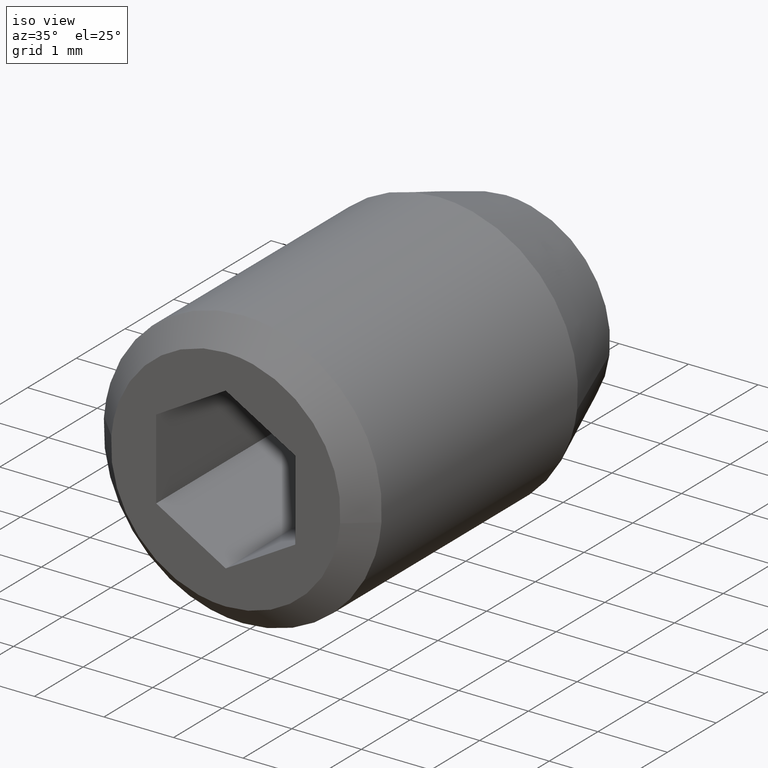
[diagram: clean part render]
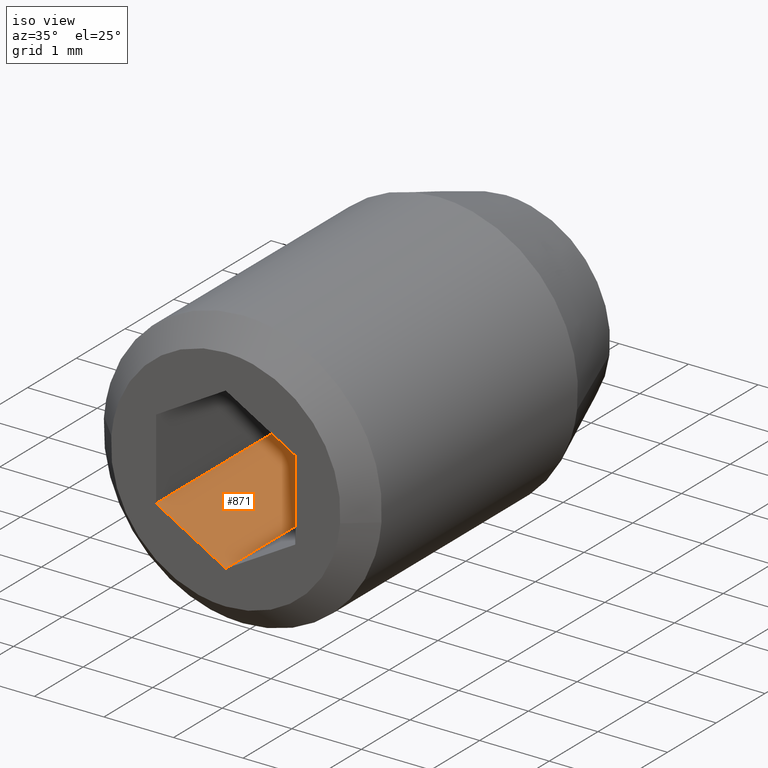
[diagram: same view with one face highlighted and labeled with its STEP entity id]
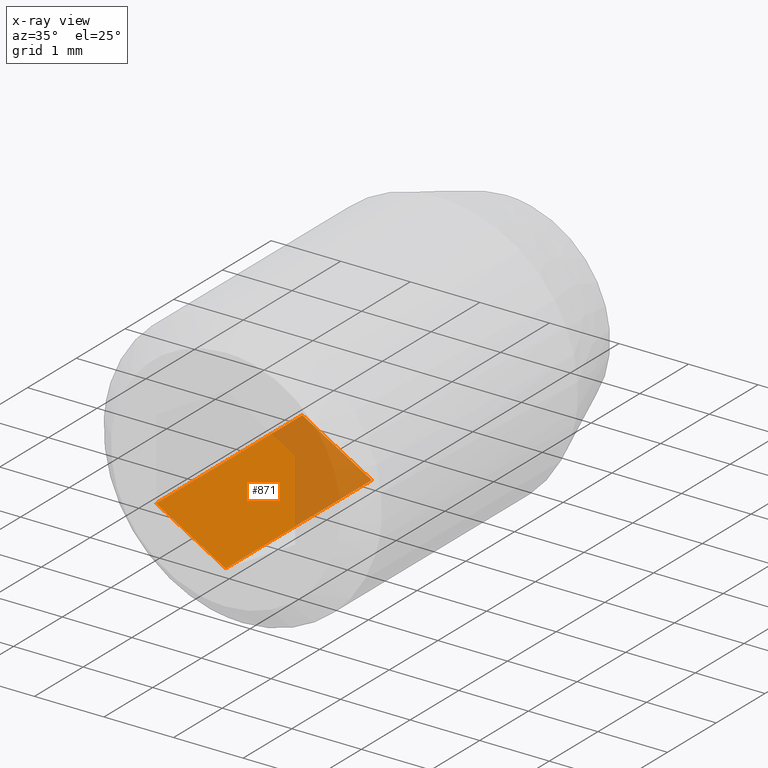
[diagram: x-ray of the same camera — body ghosted, the highlighted face saturated]
A machine part, iso view. The second image highlights one B-rep face of the part: STEP entity #871.
The next image is the same camera in x-ray: the body ghosted, the highlighted face saturated — about 31% of this face is hidden behind the body in this view.
In plain terms, the highlighted face is a freeform B-spline surface patch.
Its self-contained STEP definition (entity closure, byte-faithful):
#742=CARTESIAN_POINT('',(-1.0,-3.499999999999950,-0.577350000000017));
#743=VERTEX_POINT('',#742);
#749=CARTESIAN_POINT('',(0.0,-3.499999999999950,-1.154701000000000));
#750=VERTEX_POINT('',#749);
#751=CARTESIAN_POINT('',(-1.0,-3.499999999999950,-0.577350000000017));
#752=CARTESIAN_POINT('',(0.0,-3.499999999999950,-1.154701000000000));
#753=QUASI_UNIFORM_CURVE('',1,(#751,#752),.UNSPECIFIED.,.F.,.U.);
#754=EDGE_CURVE('',#743,#750,#753,.T.);
#833=CARTESIAN_POINT('',(0.0,-6.500000000000000,-1.154701000000000));
#834=VERTEX_POINT('',#833);
#842=CARTESIAN_POINT('',(0.0,-3.499999999999950,-1.154701000000000));
#843=CARTESIAN_POINT('',(0.0,-6.500000000000000,-1.154701000000000));
#844=QUASI_UNIFORM_CURVE('',1,(#842,#843),.UNSPECIFIED.,.F.,.U.);
#845=EDGE_CURVE('',#750,#834,#844,.T.);
#850=CARTESIAN_POINT('',(0.049949998061804,-6.649849994185422,-1.183539681330984));
#851=CARTESIAN_POINT('',(-1.049950024883896,-6.649849994185422,-0.548511303183275));
#852=CARTESIAN_POINT('',(0.049949998061804,-3.350149925348259,-1.183539681330984));
#853=CARTESIAN_POINT('',(-1.049950024883896,-3.350149925348259,-0.548511303183275));
#854=B_SPLINE_SURFACE_WITH_KNOTS('',1,1,((#850,#852),(#851,#853)),.UNSPECIFIED.,.F.,.F.,.U.,(2,2),(2,2),(0.041708334948495,0.958291687403247),(0.0,3.299700068837163),.UNSPECIFIED.);
#855=CARTESIAN_POINT('',(-1.0,-6.500000000000000,-0.577350000000017));
#856=VERTEX_POINT('',#855);
#857=CARTESIAN_POINT('',(-1.0,-6.500000000000000,-0.577350000000017));
#858=CARTESIAN_POINT('',(0.0,-6.500000000000000,-1.154701000000000));
#859=QUASI_UNIFORM_CURVE('',1,(#857,#858),.UNSPECIFIED.,.F.,.U.);
#860=EDGE_CURVE('',#856,#834,#859,.T.);
#861=ORIENTED_EDGE('',*,*,#860,.T.);
#862=ORIENTED_EDGE('',*,*,#845,.F.);
#863=ORIENTED_EDGE('',*,*,#754,.F.);
#864=CARTESIAN_POINT('',(-1.0,-3.499999999999950,-0.577350000000017));
#865=CARTESIAN_POINT('',(-1.0,-6.500000000000000,-0.577350000000017));
#866=QUASI_UNIFORM_CURVE('',1,(#864,#865),.UNSPECIFIED.,.F.,.U.);
#867=EDGE_CURVE('',#743,#856,#866,.T.);
#868=ORIENTED_EDGE('',*,*,#867,.T.);
#869=EDGE_LOOP('',(#861,#862,#863,#868));
#870=FACE_OUTER_BOUND('',#869,.T.);
#871=ADVANCED_FACE('',(#870),#854,.F.);